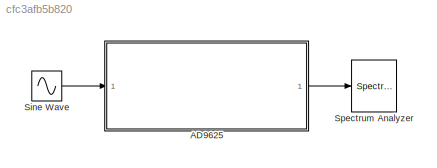
MODEL slx_cfc3afb5b820
KIND model
CONFIG AbsTol = auto
CONFIG EnableMultiTasking = on
CONFIG FixedStep = 1/2500e6
CONFIG MaxStep = auto
CONFIG MinStep = auto
CONFIG RelTol = 1e-3
CONFIG SampleTimeConstraint = Unconstrained
CONFIG Solver = FixedStepDiscrete
CONFIG SolverName = FixedStepDiscrete
CONFIG StartTime = 0.0
CONFIG StopTime = 0.00002
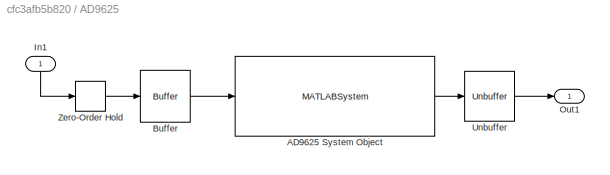
BLOCK [SubSystem] AD9625
  Ports = [1, 1]
  RequestExecContextInheritance = off
BLOCK [MATLABSystem] AD9625/AD9625 System Object
  Decimation = 8
  ExtJitter = 60e-15
  Fclk = 2500e6
  Gain = 0
  InputConfig = Normalized
  MaskDisplay = disp('AD9625');\nport_label('input',1,'in (V)');\nport_label('output',1,'out (Code)');
  MaskType = AD9625_sysobj
  Mode = ADC Only
  NcoFreq = 100e6
  Ports = [1, 1]
  SimulateUsing = Interpreted execution
  System = AD9625_sysobj
  Tessitura = 147e6
BLOCK [Buffer] AD9625/Buffer
BLOCK [Inport] AD9625/In1
  IconDisplay = Port number
BLOCK [Outport] AD9625/Out1
  IconDisplay = Port number
BLOCK [Unbuffer] AD9625/Unbuffer
  Ports = [1, 1]
BLOCK [ZeroOrderHold] AD9625/Zero-Order Hold
  SampleTime = 1/2500e6
BLOCK [Sin] Sine Wave
  Amplitude = 0.89
  Frequency = 2*pi*147e6
  Ports = [0, 1]
  SampleTime = 0
BLOCK [SpectrumAnalyzer] Spectrum Analyzer
  Ports = [1]
  ScopeSpecificationString = spbscopes.SpectrumAnalyzerBlockCfg('CurrentConfiguration', extmgr.ConfigurationSet(extmgr.Configuration('Core','General UI',true),extmgr.Configuration('Core','Source UI',true),extmgr.Configuration('Sources','WiredSimulink',true),extmgr.Configuration('Visuals','Spectrum',true,'AxesProperties',struct('Color',{[0 0 0],[0 0 0]},'XColor',{[0.686274509803922 0.686274509803922 0.686274509803922],[0.68627...<+1865ch>
LINE AD9625/AD9625 System Object:1 -> AD9625/Unbuffer:1
LINE AD9625/Buffer:1 -> AD9625/AD9625 System Object:1
LINE AD9625/In1:1 -> AD9625/Zero-Order Hold:1
LINE AD9625/Unbuffer:1 -> AD9625/Out1:1
LINE AD9625/Zero-Order Hold:1 -> AD9625/Buffer:1
LINE AD9625:1 -> Spectrum Analyzer:1
LINE Sine Wave:1 -> AD9625:1
